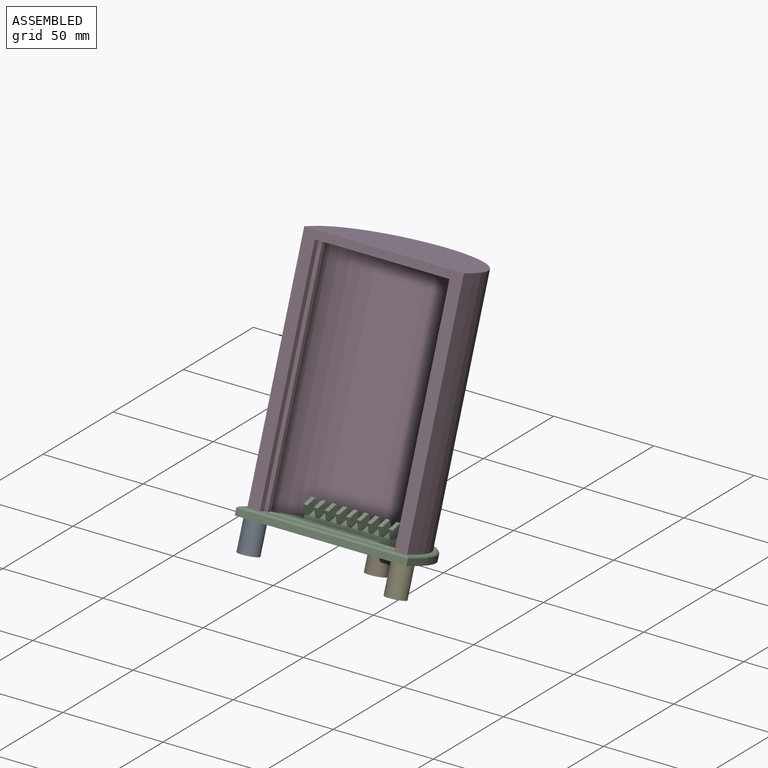
[diagram: assembled view]
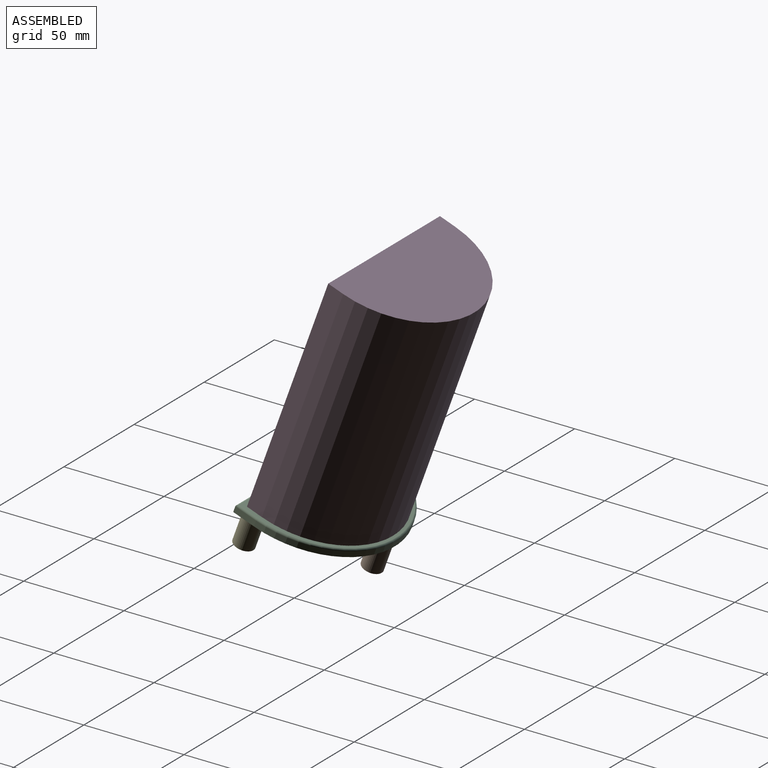
[diagram: assembled view, second angle]
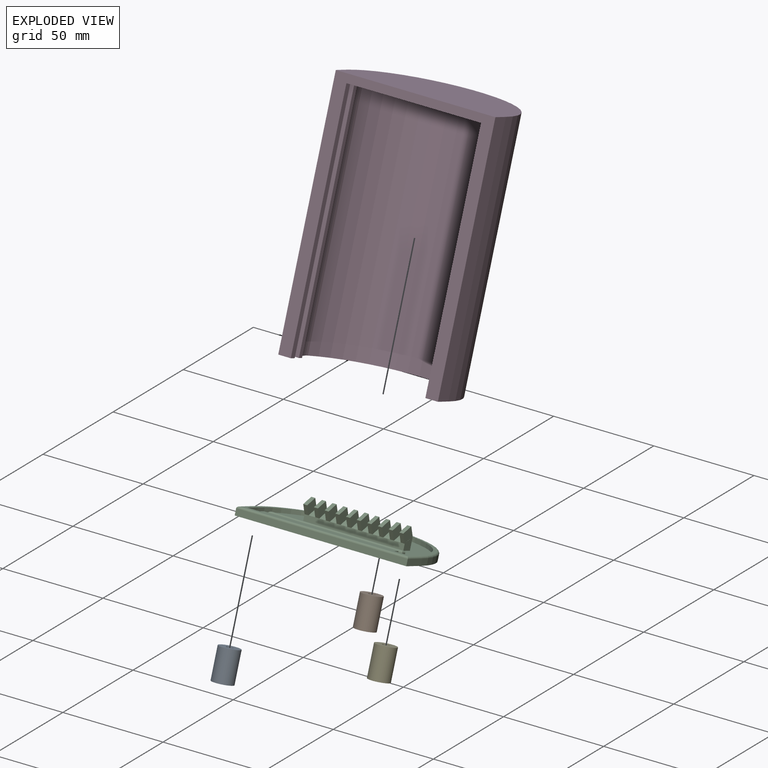
[diagram: exploded view]
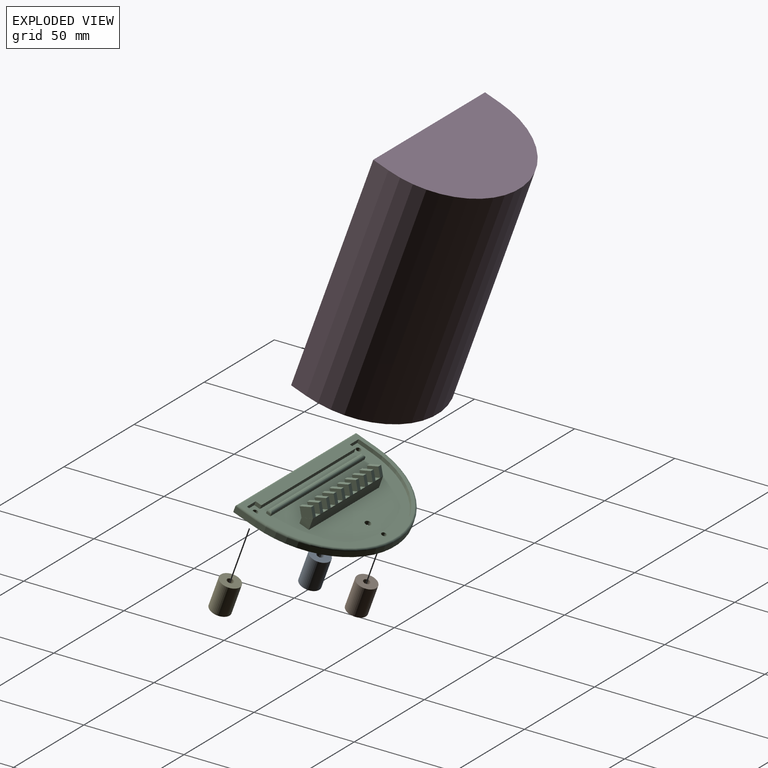
[diagram: exploded view, second angle]
ASSEMBLY  parts=5 mates=4
PART A: 6 faces, bbox 10x10x15 mm
  f0: cylinder r=1.6mm len=6mm, axis (0,0,-1), area 60.3mm2, adj f3,f5
  f1: cylinder r=5mm len=15mm, axis (0,0,-1), area 471.2mm2, adj f2,f3
  f2: plane 10x10mm, normal (0,0,1), area 50.3mm2, adj f1,f4
  f3: plane 10x10mm, normal (0,0,-1), area 70.5mm2, adj f0,f1
  f4: cylinder r=3mm len=9mm, axis (0,0,1), area 169.6mm2, adj f2,f5
  f5: plane 6x6mm, normal (0,0,1), area 20.2mm2, adj f0,f4
PART B: same geometry as A
PART C: 95 faces, bbox 92.8x57.4x12.3 mm
  f0: plane 79.7x47.85mm, normal (0,0,1), area 2502.3mm2, adj f17,f18,f19,f20,f21,f22,f23,f24
  f1: plane 85.7x53.85mm, normal (0,0,-1), area 3805.1mm2, adj f12,f13,f14,f15,f91,f92,f93,f94
  f2: plane 5x3mm, normal (0,-0.51,0.86), area 0.2mm2, adj f30,f32,f33,f78
  f3: plane 5x3.33mm, normal (0,-0.51,0.86), area 19.4mm2, adj f30,f32,f73,f80
  f4: plane 5x3.33mm, normal (0,-0.51,0.86), area 19.4mm2, adj f30,f32,f68,f75
  f5: plane 5x3.33mm, normal (0,-0.51,0.86), area 19.4mm2, adj f30,f32,f63,f70
  f6: plane 5x3.33mm, normal (0,-0.51,0.86), area 19.4mm2, adj f30,f32,f58,f65
  f7: plane 5x3.33mm, normal (0,-0.51,0.86), area 19.4mm2, adj f30,f32,f53,f60
  f8: plane 5x3.33mm, normal (0,-0.51,0.86), area 19.4mm2, adj f30,f32,f48,f55
  f9: plane 5x3.33mm, normal (0,-0.51,0.86), area 19.4mm2, adj f30,f32,f43,f50
  f10: plane 5x3.33mm, normal (0,-0.51,0.86), area 19.4mm2, adj f30,f32,f38,f45
  f11: plane 5x3.33mm, normal (0,-0.51,0.86), area 19.4mm2, adj f30,f32,f34,f40
  f12: plane 85.7x3mm, normal (0,-1,0), area 257.1mm2, adj f1,f13,f15,f85
  f13: plane 11x3mm, normal (1,0,0), area 33mm2, adj f1,f12,f14,f86
  f14: cylinder r=42.85mm len=85.7mm, axis (0,0,-1), area 403.9mm2, adj f1,f13,f15,f84
  f15: plane 11x3mm, normal (-1,0,0), area 33mm2, adj f1,f12,f14,f83
  f16: plane 83.7x51.85mm, normal (0,0,1), area 657.7mm2, adj f17,f18,f19,f20,f21,f22,f23,f28
  f17: cylinder r=39.85mm len=79.7mm, axis (0,0,1), area 250.4mm2, adj f0,f16,f18,f28
  f18: plane 8x2mm, normal (1,0,0), area 16mm2, adj f0,f16,f17,f19
  f19: plane 6.25x2mm, normal (0,1,0), area 12.5mm2, adj f0,f16,f18,f20
  f20: plane 3x2mm, normal (-1,0,0), area 6mm2, adj f0,f16,f19,f21
  f21: plane 67.2x2mm, normal (0,1,0), area 134.4mm2, adj f0,f16,f20,f22
  f22: plane 3x2mm, normal (1,0,0), area 6mm2, adj f0,f16,f21,f23
  f23: plane 6.25x2mm, normal (0,1,0), area 12.5mm2, adj f0,f16,f22,f28
  f24: plane 67.2x1mm, normal (0,-1,0), area 67.2mm2, adj f0,f25,f27,f88
  f25: plane 2.33x1mm, normal (-1,0,0), area 2.3mm2, adj f0,f24,f26,f87
  f26: plane 67.2x1mm, normal (0,1,0), area 67.2mm2, adj f0,f25,f27,f89
  f27: plane 2.33x1mm, normal (1,0,0), area 2.3mm2, adj f0,f24,f26,f90
  f28: plane 8x2mm, normal (-1,0,0), area 16mm2, adj f0,f16,f17,f23
  f29: plane 65.2x0.33mm, normal (0,0,1), area 21.4mm2, adj f87,f88,f89,f90
  f30: plane 50x6mm, normal (0,1,0), area 300mm2, adj f0,f2,f3,f4,f5,f6,f7,f8
  f31: plane 10.29x7.57mm, normal (-1,0,0), area 51.7mm2, adj f0,f30,f32,f35,f36,f37
  f32: plane 50x3mm, normal (0,-1,0), area 150mm2, adj f0,f2,f3,f4,f5,f6,f7,f8
  f33: plane 6x5mm, normal (1,0,0), area 22.5mm2, adj f0,f2,f30,f32
  f34: plane 7.57x7.29mm, normal (1,0,0), area 29.2mm2, adj f11,f35,f36,f37
  f35: plane 4.29x2.57mm, normal (0,0.86,0.51), area 10mm2, adj f30,f31,f34,f37
  f36: plane 4.29x2.57mm, normal (0,-0.86,-0.51), area 10mm2, adj f31,f32,f34,f37
  f37: plane 5x3mm, normal (0,-0.51,0.86), area 11.7mm2, adj f31,f34,f35,f36
  f38: plane 7.57x7.29mm, normal (1,0,0), area 29.2mm2, adj f10,f39,f41,f42
  f39: plane 4.29x2.57mm, normal (0,0.86,0.51), area 10mm2, adj f30,f38,f40,f42
  f40: plane 7.57x7.29mm, normal (-1,0,0), area 29.2mm2, adj f11,f39,f41,f42
  f41: plane 4.29x2.57mm, normal (0,-0.86,-0.51), area 10mm2, adj f32,f38,f40,f42
  f42: plane 5x3mm, normal (0,-0.51,0.86), area 11.7mm2, adj f38,f39,f40,f41
  f43: plane 7.57x7.29mm, normal (1,0,0), area 29.2mm2, adj f9,f44,f46,f47
  f44: plane 4.29x2.57mm, normal (0,0.86,0.51), area 10mm2, adj f30,f43,f45,f47
  f45: plane 7.57x7.29mm, normal (-1,0,0), area 29.2mm2, adj f10,f44,f46,f47
  f46: plane 4.29x2.57mm, normal (0,-0.86,-0.51), area 10mm2, adj f32,f43,f45,f47
  f47: plane 5x3mm, normal (0,-0.51,0.86), area 11.7mm2, adj f43,f44,f45,f46
  f48: plane 7.57x7.29mm, normal (1,0,0), area 29.2mm2, adj f8,f49,f51,f52
  f49: plane 4.29x2.57mm, normal (0,0.86,0.51), area 10mm2, adj f30,f48,f50,f52
  f50: plane 7.57x7.29mm, normal (-1,0,0), area 29.2mm2, adj f9,f49,f51,f52
  f51: plane 4.29x2.57mm, normal (0,-0.86,-0.51), area 10mm2, adj f32,f48,f50,f52
  f52: plane 5x3mm, normal (0,-0.51,0.86), area 11.7mm2, adj f48,f49,f50,f51
  f53: plane 7.57x7.29mm, normal (1,0,0), area 29.2mm2, adj f7,f54,f56,f57
  f54: plane 4.29x2.57mm, normal (0,0.86,0.51), area 10mm2, adj f30,f53,f55,f57
  f55: plane 7.57x7.29mm, normal (-1,0,0), area 29.2mm2, adj f8,f54,f56,f57
  f56: plane 4.29x2.57mm, normal (0,-0.86,-0.51), area 10mm2, adj f32,f53,f55,f57
  f57: plane 5x3mm, normal (0,-0.51,0.86), area 11.7mm2, adj f53,f54,f55,f56
  f58: plane 7.57x7.29mm, normal (1,0,0), area 29.2mm2, adj f6,f59,f61,f62
  f59: plane 4.29x2.57mm, normal (0,0.86,0.51), area 10mm2, adj f30,f58,f60,f62
  f60: plane 7.57x7.29mm, normal (-1,0,0), area 29.2mm2, adj f7,f59,f61,f62
  f61: plane 4.29x2.57mm, normal (0,-0.86,-0.51), area 10mm2, adj f32,f58,f60,f62
  f62: plane 5x3mm, normal (0,-0.51,0.86), area 11.7mm2, adj f58,f59,f60,f61
  f63: plane 7.57x7.29mm, normal (1,0,0), area 29.2mm2, adj f5,f64,f66,f67
  f64: plane 4.29x2.57mm, normal (0,0.86,0.51), area 10mm2, adj f30,f63,f65,f67
  f65: plane 7.57x7.29mm, normal (-1,0,0), area 29.2mm2, adj f6,f64,f66,f67
  f66: plane 4.29x2.57mm, normal (0,-0.86,-0.51), area 10mm2, adj f32,f63,f65,f67
  f67: plane 5x3mm, normal (0,-0.51,0.86), area 11.7mm2, adj f63,f64,f65,f66
  f68: plane 7.57x7.29mm, normal (1,0,0), area 29.2mm2, adj f4,f69,f71,f72
  f69: plane 4.29x2.57mm, normal (0,0.86,0.51), area 10mm2, adj f30,f68,f70,f72
  f70: plane 7.57x7.29mm, normal (-1,0,0), area 29.2mm2, adj f5,f69,f71,f72
  f71: plane 4.29x2.57mm, normal (0,-0.86,-0.51), area 10mm2, adj f32,f68,f70,f72
  f72: plane 5x3mm, normal (0,-0.51,0.86), area 11.7mm2, adj f68,f69,f70,f71
  f73: plane 7.57x7.29mm, normal (1,0,0), area 29.2mm2, adj f3,f74,f76,f77
  f74: plane 4.29x2.57mm, normal (0,0.86,0.51), area 10mm2, adj f30,f73,f75,f77
  f75: plane 7.57x7.29mm, normal (-1,0,0), area 29.2mm2, adj f4,f74,f76,f77
  f76: plane 4.29x2.57mm, normal (0,-0.86,-0.51), area 10mm2, adj f32,f73,f75,f77
  f77: plane 5x3mm, normal (0,-0.51,0.86), area 11.7mm2, adj f73,f74,f75,f76
  f78: plane 7.57x7.29mm, normal (1,0,0), area 29.2mm2, adj f2,f79,f81,f82
  f79: plane 4.29x2.57mm, normal (0,0.86,0.51), area 10mm2, adj f30,f78,f80,f82
  f80: plane 7.57x7.29mm, normal (-1,0,0), area 29.2mm2, adj f3,f79,f81,f82
  f81: plane 4.29x2.57mm, normal (0,-0.86,-0.51), area 10mm2, adj f32,f78,f80,f82
  f82: plane 5x3mm, normal (0,-0.51,0.86), area 11.7mm2, adj f78,f79,f80,f81
  f83: cylinder r=1mm len=11mm, axis (0,1,0), area 16.7mm2, adj f15,f16,f84,f85
  f84: torus R=41.85mm, axis (0,0,1), area 209.7mm2, adj f14,f16,f83,f86
  f85: cylinder r=1mm len=85.7mm, axis (-1,0,0), area 133.5mm2, adj f12,f16,f83,f86
  f86: cylinder r=1mm len=11mm, axis (0,-1,0), area 16.7mm2, adj f13,f16,f84,f85
  f87: cylinder r=1mm len=2.33mm, axis (0,-1,0), area 2.5mm2, adj f25,f29,f88,f89
  f88: cylinder r=1mm len=67.2mm, axis (1,0,0), area 104.4mm2, adj f24,f29,f87,f90
  f89: cylinder r=1mm len=67.2mm, axis (-1,0,0), area 104.4mm2, adj f26,f29,f87,f90
  f90: cylinder r=1mm len=2.33mm, axis (0,1,0), area 2.5mm2, adj f27,f29,f88,f89
  f91: cylinder r=1.25mm len=2.5mm, axis (0,0,1), area 15.7mm2, adj f0,f1
  f92: cylinder r=1.25mm len=2.5mm, axis (0,0,1), area 15.7mm2, adj f0,f1
  f93: cylinder r=1.5mm len=3mm, axis (0,0,1), area 18.8mm2, adj f0,f1
  f94: cylinder r=1.25mm len=2.5mm, axis (0,0,1), area 15.7mm2, adj f0,f1
PART D: 22 faces, bbox 79.7x47.9x120 mm
  f0: plane 74.31x40.18mm, normal (0,0,-1), area 2396.3mm2, adj f5,f6,f7,f8,f9,f10,f11,f12
  f1: plane 116x3mm, normal (-1,0,0), area 348mm2, adj f3,f17,f19,f20
  f2: plane 116x3mm, normal (1,0,0), area 348mm2, adj f3,f17,f19,f20
  f3: plane 118x72.2mm, normal (0,1,0), area 724.4mm2, adj f1,f2,f4,f13,f19,f20,f21
  f4: plane 118x3.2mm, normal (1,0,0), area 377.6mm2, adj f3,f12,f19,f21
  f5: plane 116x2.33mm, normal (1,0,0), area 270mm2, adj f0,f6,f12,f19
  f6: plane 116x1.73mm, normal (0.78,0.62,0), area 256.7mm2, adj f0,f5,f7,f19
  f7: cylinder r=10mm len=116mm, axis (0,0,-1), area 969.8mm2, adj f0,f6,f8,f19
  f8: cylinder r=38.38mm len=116mm, axis (0,0,-1), area 11610mm2, adj f0,f7,f9,f19
  f9: cylinder r=10mm len=116mm, axis (0,0,-1), area 969.8mm2, adj f0,f8,f10,f19
  f10: plane 116x1.73mm, normal (-0.78,0.62,0), area 256.7mm2, adj f0,f9,f11,f19
  f11: plane 116x2.33mm, normal (-1,0,0), area 270mm2, adj f0,f10,f12,f19
  f12: plane 118x72.2mm, normal (0,-1,0), area 724.4mm2, adj f0,f4,f5,f11,f13,f19,f21
  f13: plane 118x3.2mm, normal (-1,0,0), area 377.6mm2, adj f3,f12,f19,f21
  f14: plane 120x8mm, normal (1,0,0), area 960mm2, adj f15,f17,f18,f19
  f15: cylinder r=39.85mm len=120mm, axis (0,0,-1), area 15023.1mm2, adj f14,f16,f18,f19
  f16: plane 120x8mm, normal (-1,0,0), area 960mm2, adj f15,f17,f18,f19
  f17: plane 120x79.7mm, normal (0,-1,0), area 1768.8mm2, adj f1,f2,f14,f16,f18,f19,f20
  f18: plane 79.7x47.85mm, normal (0,0,1), area 3132.1mm2, adj f14,f15,f16,f17
  f19: plane 79.7x47.85mm, normal (0,0,-1), area 303.1mm2, adj f1,f2,f3,f4,f5,f6,f7,f8
  f20: plane 67.2x3mm, normal (0,0,-1), area 201.6mm2, adj f1,f2,f3,f17
  f21: plane 72.2x3.2mm, normal (0,0,-1), area 231mm2, adj f3,f4,f12,f13
PART E: same geometry as A
PLACE A rot(axis=(1,0,0),160deg) t=(-7.24,26.41,-2.4)mm
PLACE B rot(axis=(1,0,0),160deg) t=(29.48,64.8,-16.37)mm
PLACE C rot(axis=(-1,0,0),20deg) t=(30.78,31.11,-4.11)mm
PLACE D rot(axis=(-1,0,0),20deg) t=(29.48,27.33,0.12)mm
PLACE E rot(axis=(1,0,0),160deg) t=(66.21,26.41,-2.4)mm
MATE slider B.f0 <-> C.f92  axis (0,0.34,0.94) through (29.48,64.8,-16.37)mm
MATE slider A.f0 <-> C.f94  axis (0,0.34,0.94) through (-7.24,26.41,-2.4)mm
MATE slider E.f0 <-> C.f91  axis (0,0.34,0.94) through (66.21,26.41,-2.4)mm
MATE slider C.f17 <-> D.f8  axis (0,0.34,0.94) through (29.48,32.48,-0.35)mm
